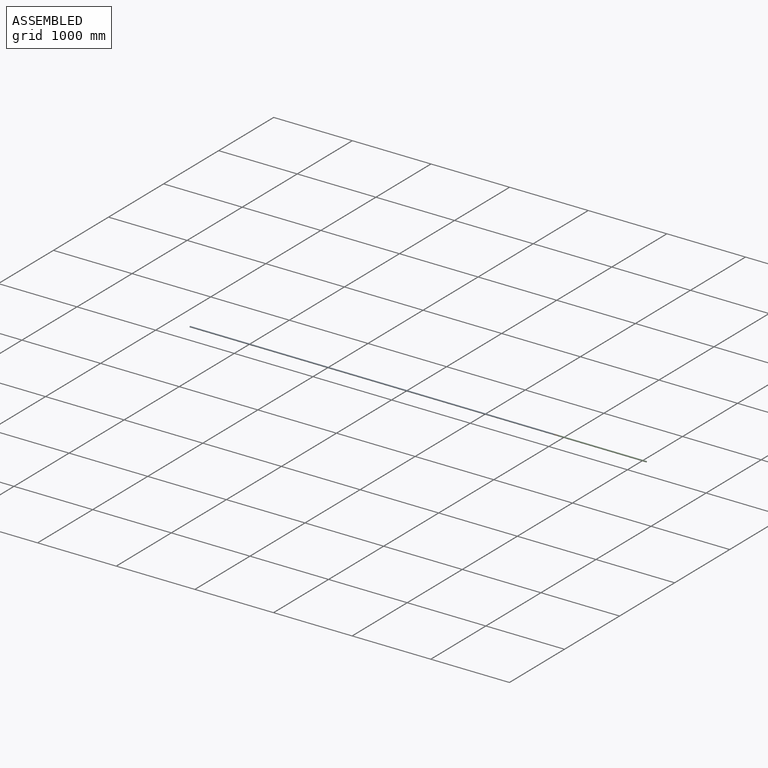
[diagram: assembled view]
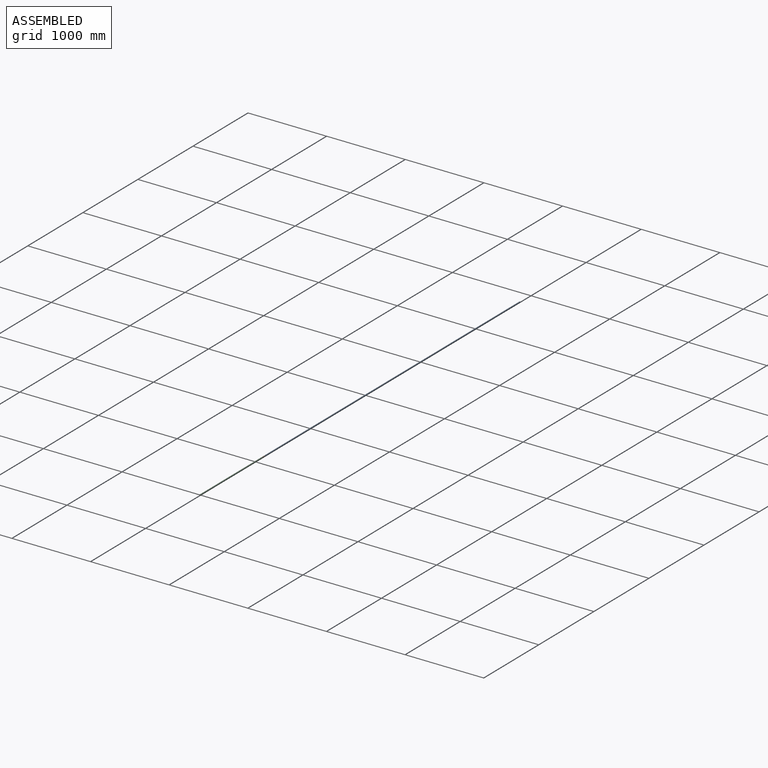
[diagram: assembled view, second angle]
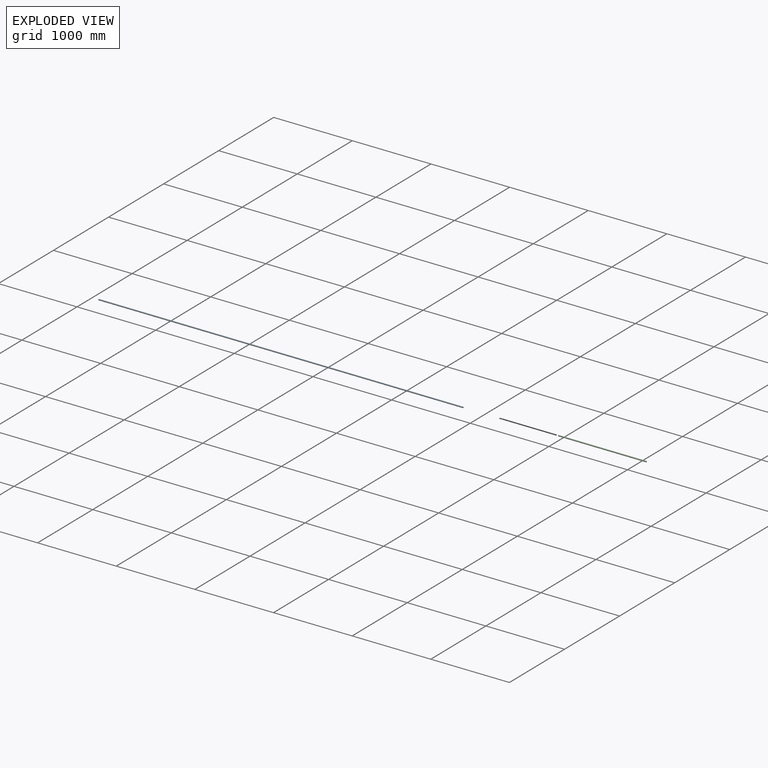
[diagram: exploded view]
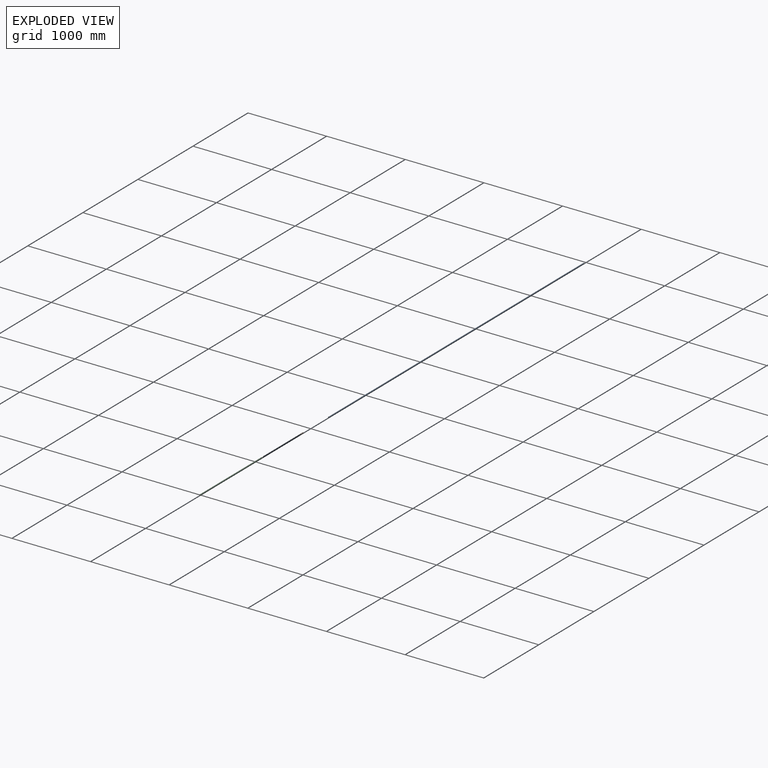
[diagram: exploded view, second angle]
ASSEMBLY  parts=3 mates=2
PART A: 3 faces, bbox 15x4635x15 mm
  f0: cylinder r=7.5mm len=4635mm, axis (0,1,0), area 218419.2mm2, adj f1,f2
  f1: plane 15x15mm, normal (0,-1,0), area 176.7mm2, adj f0
  f2: plane 15x15mm, normal (0,1,0), area 176.7mm2, adj f0
PART B: 3 faces, bbox 15x50x15 mm
  f0: cylinder r=7.5mm len=50mm, axis (0,1,0), area 2356.2mm2, adj f1,f2
  f1: plane 15x15mm, normal (0,-1,0), area 176.7mm2, adj f0
  f2: plane 15x15mm, normal (0,1,0), area 176.7mm2, adj f0
PART C: 3 faces, bbox 15x1120x15 mm
  f0: cylinder r=7.5mm len=1120mm, axis (0,1,0), area 52778.8mm2, adj f1,f2
  f1: plane 15x15mm, normal (0,-1,0), area 176.7mm2, adj f0
  f2: plane 15x15mm, normal (0,1,0), area 176.7mm2, adj f0
PLACE A rot(axis=(-0.58,0.58,0.58),120deg) t=(2360,4110,-75)mm
PLACE B rot(axis=(0,0,-1),90deg) t=(7045,4110,-75)mm
PLACE C rot(axis=(-0.58,0.58,0.58),120deg) t=(7045,4110,-75)mm
MATE revolute B.f0 <-> C.f0  axis (1,0,0) through (7045,4110,-75)mm
MATE revolute A.f0 <-> B.f0  axis (1,0,0) through (6995,4110,-75)mm
